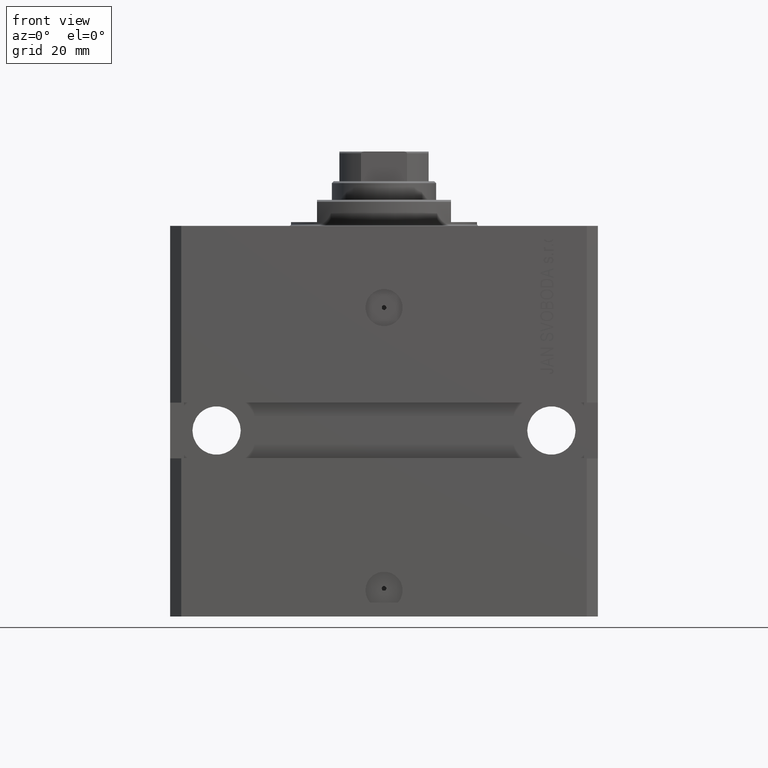
[diagram: clean part render]
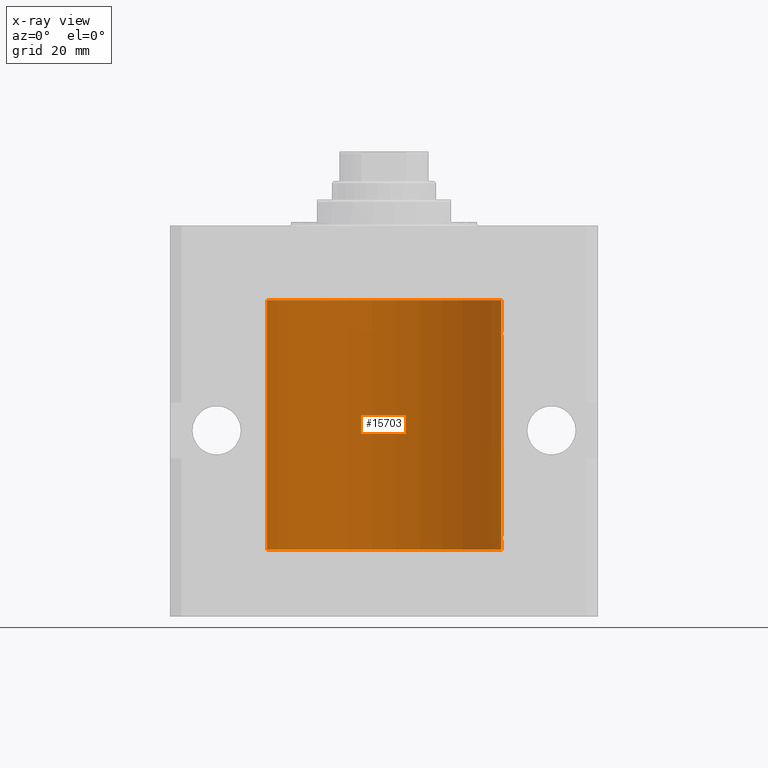
[diagram: x-ray — body ghosted, one internal face saturated and labeled with its STEP entity id]
A machine part, front view, then the same camera in x-ray: the body is ghosted and one INTERNAL B-rep face — a face not visible from any outside direction — is saturated and labeled: STEP entity #15703.
In plain terms, the highlighted cylindrical surface (partial cylindrical patch) has radius 31.5 mm, axis along (0, 0, 1).
Its self-contained STEP definition (entity closure, byte-faithful):
#59 = EDGE_CURVE ( 'NONE', #24179, #36845, #38765, .T. ) ;
#1533 = CARTESIAN_POINT ( 'NONE',  ( 31.50000000000000000, 0.000000000000000000, -20.00000000000000355 ) ) ;
#1891 = B_SPLINE_CURVE_WITH_KNOTS ( 'NONE', 3,
 ( #6083, #12973, #32169, #5587, #28464, #24790 ),
 .UNSPECIFIED., .F., .F.,
 ( 4, 2, 4 ),
 ( 0.0009772631991206588969, 0.001465673424414194563, 0.001954083649707730446 ),
 .UNSPECIFIED. ) ;
#3956 = CARTESIAN_POINT ( 'NONE',  ( 0.000000000000000000, 0.000000000000000000, -87.09999999999999432 ) ) ;
#5587 = CARTESIAN_POINT ( 'NONE',  ( 31.49853627283156499, 0.3253078817183396310, -83.44140989403643971 ) ) ;
#6083 = CARTESIAN_POINT ( 'NONE',  ( 31.49379899281745665, 0.6250000000082825968, -83.99999999999904787 ) ) ;
#6772 = LINE ( 'NONE', #7240, #43623 ) ;
#6909 = ORIENTED_EDGE ( 'NONE', *, *, #20113, .T. ) ;
#7240 = CARTESIAN_POINT ( 'NONE',  ( 31.50000000000000000, 0.000000000000000000, -87.09999999999999432 ) ) ;
#7902 = DIRECTION ( 'NONE',  ( 0.000000000000000000, 0.000000000000000000, 1.000000000000000000 ) ) ;
#8168 = CARTESIAN_POINT ( 'NONE',  ( 31.50000000000000000, -1.286676774952591455E-15, -29.62500000000000000 ) ) ;
#8366 = CARTESIAN_POINT ( 'NONE',  ( 31.50000000000000000, 0.000000000000000000, -87.09999999999999432 ) ) ;
#8494 = EDGE_CURVE ( 'NONE', #24341, #19421, #6772, .T. ) ;
#9273 = ORIENTED_EDGE ( 'NONE', *, *, #34094, .T. ) ;
#10518 = CARTESIAN_POINT ( 'NONE',  ( 31.49851501686590893, 0.3150934959385818801, -84.54594721883857744 ) ) ;
#10756 = CARTESIAN_POINT ( 'NONE',  ( 31.49379899281745665, 0.6250000000082825968, -83.99999999999904787 ) ) ;
#10998 = CARTESIAN_POINT ( 'NONE',  ( 31.49770674525946390, 0.3844410175904657834, -84.49948347834464357 ) ) ;
#11346 = DIRECTION ( 'NONE',  ( 1.000000000000000000, 0.000000000000000000, 0.000000000000000000 ) ) ;
#11565 = VERTEX_POINT ( 'NONE', #12465 ) ;
#11667 = DIRECTION ( 'NONE',  ( -0.000000000000000000, -0.000000000000000000, 1.000000000000000000 ) ) ;
#12465 = CARTESIAN_POINT ( 'NONE',  ( 31.49379899281745665, 0.6250000000082825968, -83.99999999999904787 ) ) ;
#12781 = DIRECTION ( 'NONE',  ( 1.000000000000000000, 0.000000000000000000, 0.000000000000000000 ) ) ;
#12898 = VERTEX_POINT ( 'NONE', #46888 ) ;
#12973 = CARTESIAN_POINT ( 'NONE',  ( 31.49379899281762363, 0.6249999999996236344, -83.83697036533064306 ) ) ;
#14155 = VECTOR ( 'NONE', #48207, 1000.000000000000000 ) ;
#14209 = CARTESIAN_POINT ( 'NONE',  ( 31.50000000000000000, -2.492939093807799249E-15, -84.62499999999998579 ) ) ;
#14957 = CARTESIAN_POINT ( 'NONE',  ( 31.50000000000000000, 0.000000000000000000, -87.09999999999999432 ) ) ;
#15500 = VERTEX_POINT ( 'NONE', #33737 ) ;
#15703 = ADVANCED_FACE ( 'NONE', ( #42097 ), #34936, .F. ) ;
#15906 = CARTESIAN_POINT ( 'NONE',  ( 31.49527883250257432, 0.5574151849338060405, -29.32638608454755058 ) ) ;
#16472 = ORIENTED_EDGE ( 'NONE', *, *, #40489, .T. ) ;
#16522 = B_SPLINE_CURVE_WITH_KNOTS ( 'NONE', 3,
 ( #30454, #45486, #19630, #19146, #41534, #35101 ),
 .UNSPECIFIED., .F., .F.,
 ( 4, 2, 4 ),
 ( 0.0009772631991206452359, 0.001465673424414174614, 0.001954083649707703992 ),
 .UNSPECIFIED. ) ;
#16611 = CIRCLE ( 'NONE', #44028, 31.50000000000000000 ) ;
#16633 = CARTESIAN_POINT ( 'NONE',  ( 31.49966575203784558, 0.1636755595825546972, -29.60873030821186802 ) ) ;
#16886 = ORIENTED_EDGE ( 'NONE', *, *, #8494, .T. ) ;
#17370 = VECTOR ( 'NONE', #40092, 1000.000000000000000 ) ;
#18633 = CARTESIAN_POINT ( 'NONE',  ( 31.49527883250257432, 0.5574151849338155884, -84.32638608454756479 ) ) ;
#19146 = CARTESIAN_POINT ( 'NONE',  ( 31.49853627283156499, 0.3253078817183363558, -28.44140989403645747 ) ) ;
#19421 = VERTEX_POINT ( 'NONE', #8168 ) ;
#19630 = CARTESIAN_POINT ( 'NONE',  ( 31.49526225382467359, 0.5586305680866376910, -28.67476160622149806 ) ) ;
#20113 = EDGE_CURVE ( 'NONE', #19421, #40871, #32660, .T. ) ;
#20983 = CARTESIAN_POINT ( 'NONE',  ( 31.50000000000000000, -2.492939093807799249E-15, -84.62499999999998579 ) ) ;
#21162 = CARTESIAN_POINT ( 'NONE',  ( 31.49379899281745665, 0.6250000000082756024, -28.99999999999905853 ) ) ;
#21865 = ORIENTED_EDGE ( 'NONE', *, *, #59, .T. ) ;
#22081 = CARTESIAN_POINT ( 'NONE',  ( 31.49966575203785268, 0.1636755595825563903, -84.60873030821188934 ) ) ;
#23359 = EDGE_LOOP ( 'NONE', ( #35203, #30987, #21865, #38791, #16472, #16886, #6909, #41045, #25653, #9273 ) ) ;
#23776 = CARTESIAN_POINT ( 'NONE',  ( 31.49379899281760231, 0.6250000000003351763, -29.16310352862698352 ) ) ;
#24179 = VERTEX_POINT ( 'NONE', #8366 ) ;
#24270 = EDGE_CURVE ( 'NONE', #12898, #30351, #41289, .T. ) ;
#24341 = VERTEX_POINT ( 'NONE', #44749 ) ;
#24433 = EDGE_CURVE ( 'NONE', #40871, #12898, #16522, .T. ) ;
#24790 = CARTESIAN_POINT ( 'NONE',  ( 31.50000000000006395, 3.442404755096224483E-13, -83.37499999999675993 ) ) ;
#25653 = ORIENTED_EDGE ( 'NONE', *, *, #24270, .T. ) ;
#27224 = CARTESIAN_POINT ( 'NONE',  ( 31.50000000000000000, -1.286676774952591455E-15, -29.62500000000000000 ) ) ;
#27322 = DIRECTION ( 'NONE',  ( -0.000000000000000000, -0.000000000000000000, 1.000000000000000000 ) ) ;
#27710 = EDGE_CURVE ( 'NONE', #24179, #15500, #16611, .T. ) ;
#28464 = CARTESIAN_POINT ( 'NONE',  ( 31.50000000000000000, 0.1631291455194407158, -83.37500000000014211 ) ) ;
#28998 = LINE ( 'NONE', #31978, #17370 ) ;
#30351 = VERTEX_POINT ( 'NONE', #1533 ) ;
#30454 = CARTESIAN_POINT ( 'NONE',  ( 31.49379899281745665, 0.6250000000082756024, -28.99999999999905853 ) ) ;
#30759 = DIRECTION ( 'NONE',  ( 0.000000000000000000, 0.000000000000000000, 1.000000000000000000 ) ) ;
#30914 = CARTESIAN_POINT ( 'NONE',  ( 31.49379899281745665, 0.6250000000082756024, -28.99999999999905853 ) ) ;
#30987 = ORIENTED_EDGE ( 'NONE', *, *, #27710, .F. ) ;
#31645 = CARTESIAN_POINT ( 'NONE',  ( 31.49770674525947101, 0.3844410175904570126, -29.49948347834465068 ) ) ;
#31978 = CARTESIAN_POINT ( 'NONE',  ( -31.50000000000000000, 3.857637417314162689E-15, -87.09999999999999432 ) ) ;
#32169 = CARTESIAN_POINT ( 'NONE',  ( 31.49526225382467359, 0.5586305680866429091, -83.67476160622149450 ) ) ;
#32660 = B_SPLINE_CURVE_WITH_KNOTS ( 'NONE', 3,
 ( #27224, #45947, #16633, #42959, #31645, #15906, #23776, #30914 ),
 .UNSPECIFIED., .F., .F.,
 ( 4, 2, 2, 4 ),
 ( 1.824539386392990385E-18, 0.0002443157997801608753, 0.0004886315995603199075, 0.0009772631991206452359 ),
 .UNSPECIFIED. ) ;
#33147 = CARTESIAN_POINT ( 'NONE',  ( 31.50000000000000000, 0.08261130139621999935, -84.62499999999995737 ) ) ;
#33320 = DIRECTION ( 'NONE',  ( -0.000000000000000000, -0.000000000000000000, 1.000000000000000000 ) ) ;
#33737 = CARTESIAN_POINT ( 'NONE',  ( -31.50000000000000000, 3.857637417314162689E-15, -87.09999999999999432 ) ) ;
#34094 = EDGE_CURVE ( 'NONE', #30351, #38004, #35412, .T. ) ;
#34206 = EDGE_CURVE ( 'NONE', #15500, #38004, #28998, .T. ) ;
#34936 = CYLINDRICAL_SURFACE ( 'NONE', #35080, 31.50000000000000000 ) ;
#35080 = AXIS2_PLACEMENT_3D ( 'NONE', #46048, #27322, #42330 ) ;
#35101 = CARTESIAN_POINT ( 'NONE',  ( 31.50000000000006395, 3.442404531757459093E-13, -28.37499999999677058 ) ) ;
#35203 = ORIENTED_EDGE ( 'NONE', *, *, #34206, .F. ) ;
#35412 = CIRCLE ( 'NONE', #40936, 31.50000000000000000 ) ;
#36845 = VERTEX_POINT ( 'NONE', #20983 ) ;
#38004 = VERTEX_POINT ( 'NONE', #41866 ) ;
#38765 = LINE ( 'NONE', #44173, #48192 ) ;
#38791 = ORIENTED_EDGE ( 'NONE', *, *, #47616, .T. ) ;
#40092 = DIRECTION ( 'NONE',  ( -0.000000000000000000, -0.000000000000000000, 1.000000000000000000 ) ) ;
#40489 = EDGE_CURVE ( 'NONE', #11565, #24341, #1891, .T. ) ;
#40871 = VERTEX_POINT ( 'NONE', #21162 ) ;
#40936 = AXIS2_PLACEMENT_3D ( 'NONE', #46516, #30759, #12781 ) ;
#41045 = ORIENTED_EDGE ( 'NONE', *, *, #24433, .T. ) ;
#41289 = LINE ( 'NONE', #14957, #14155 ) ;
#41306 = B_SPLINE_CURVE_WITH_KNOTS ( 'NONE', 3,
 ( #14209, #33147, #22081, #10518, #10998, #18633, #44490, #10756 ),
 .UNSPECIFIED., .F., .F.,
 ( 4, 2, 2, 4 ),
 ( 2.422664849601941982E-18, 0.0002443157997801665674, 0.0004886315995603306411, 0.0009772631991206588969 ),
 .UNSPECIFIED. ) ;
#41534 = CARTESIAN_POINT ( 'NONE',  ( 31.50000000000000000, 0.1631291455194386619, -28.37500000000015277 ) ) ;
#41866 = CARTESIAN_POINT ( 'NONE',  ( -31.50000000000000000, 3.857637417314162689E-15, -20.00000000000000355 ) ) ;
#42097 = FACE_OUTER_BOUND ( 'NONE', #23359, .T. ) ;
#42330 = DIRECTION ( 'NONE',  ( 1.000000000000000000, 0.000000000000000000, 0.000000000000000000 ) ) ;
#42959 = CARTESIAN_POINT ( 'NONE',  ( 31.49851501686590893, 0.3150934959385772727, -29.54594721883858099 ) ) ;
#43623 = VECTOR ( 'NONE', #11667, 1000.000000000000000 ) ;
#44028 = AXIS2_PLACEMENT_3D ( 'NONE', #3956, #7902, #11346 ) ;
#44173 = CARTESIAN_POINT ( 'NONE',  ( 31.50000000000000000, 0.000000000000000000, -87.09999999999999432 ) ) ;
#44490 = CARTESIAN_POINT ( 'NONE',  ( 31.49379899281760942, 0.6250000000003405054, -84.16310352862699062 ) ) ;
#44749 = CARTESIAN_POINT ( 'NONE',  ( 31.50000000000006395, 3.442404755096224483E-13, -83.37499999999675993 ) ) ;
#45486 = CARTESIAN_POINT ( 'NONE',  ( 31.49379899281762363, 0.6249999999996151967, -28.83697036533062885 ) ) ;
#45947 = CARTESIAN_POINT ( 'NONE',  ( 31.50000000000000711, 0.08261130139621915280, -29.62499999999999289 ) ) ;
#46048 = CARTESIAN_POINT ( 'NONE',  ( 0.000000000000000000, 0.000000000000000000, -87.09999999999999432 ) ) ;
#46516 = CARTESIAN_POINT ( 'NONE',  ( 0.000000000000000000, 0.000000000000000000, -20.00000000000000355 ) ) ;
#46888 = CARTESIAN_POINT ( 'NONE',  ( 31.50000000000006395, 3.442404531757459093E-13, -28.37499999999677058 ) ) ;
#47616 = EDGE_CURVE ( 'NONE', #36845, #11565, #41306, .T. ) ;
#48192 = VECTOR ( 'NONE', #33320, 1000.000000000000000 ) ;
#48207 = DIRECTION ( 'NONE',  ( -0.000000000000000000, -0.000000000000000000, 1.000000000000000000 ) ) ;